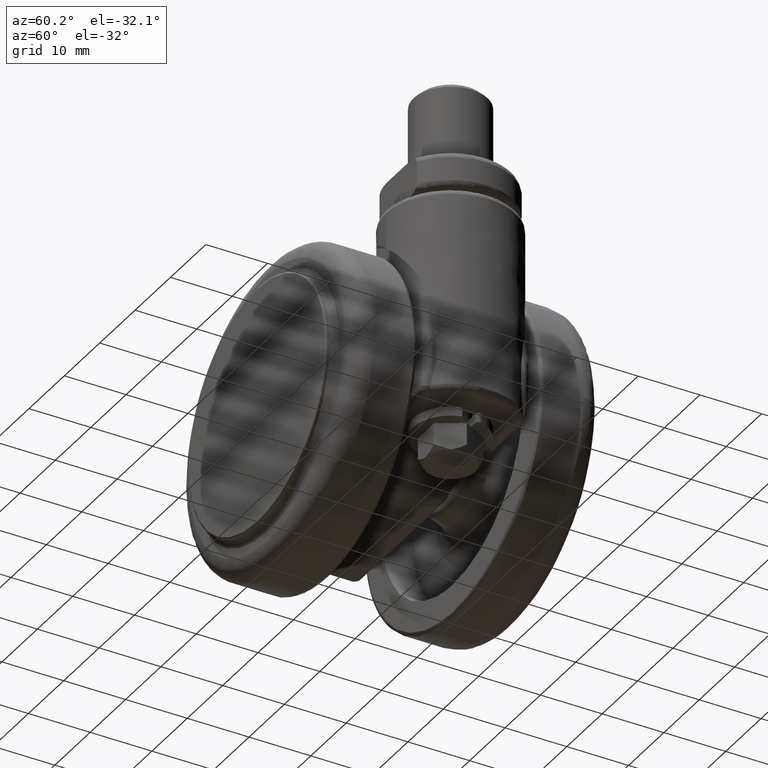
[diagram: clean part render]
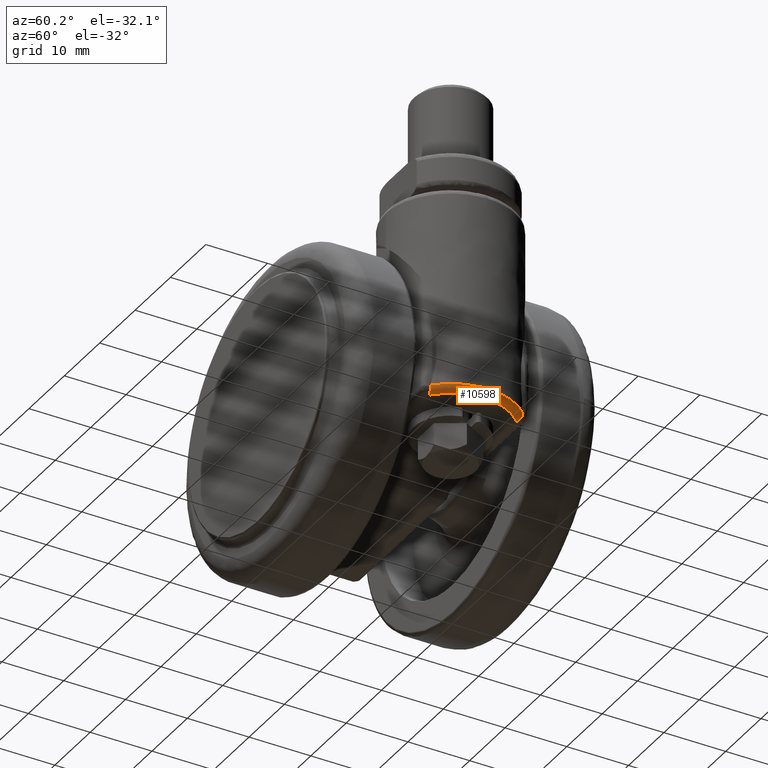
[diagram: same view with one face highlighted and labeled with its STEP entity id]
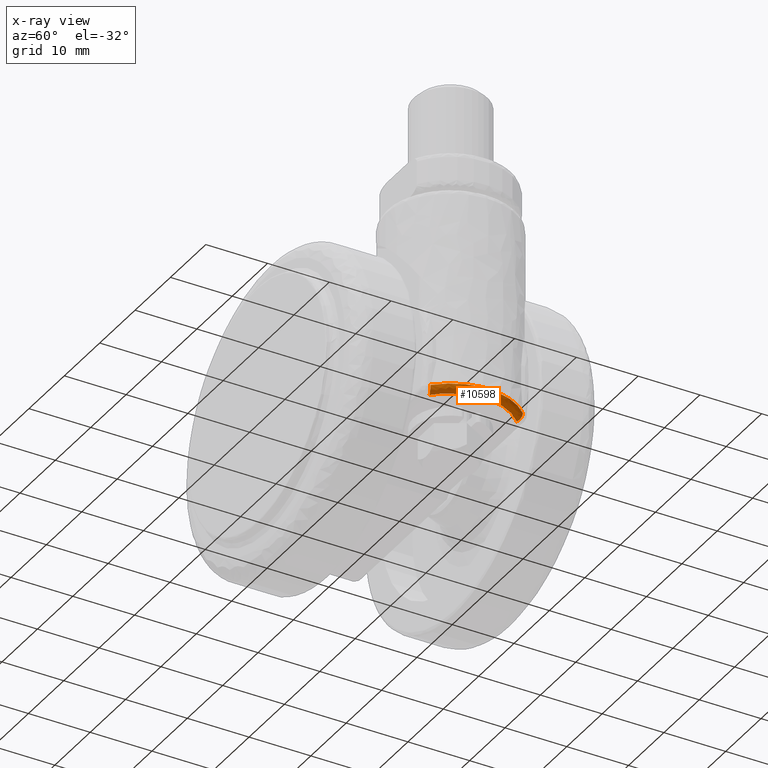
[diagram: x-ray of the same camera — body ghosted, the highlighted face saturated]
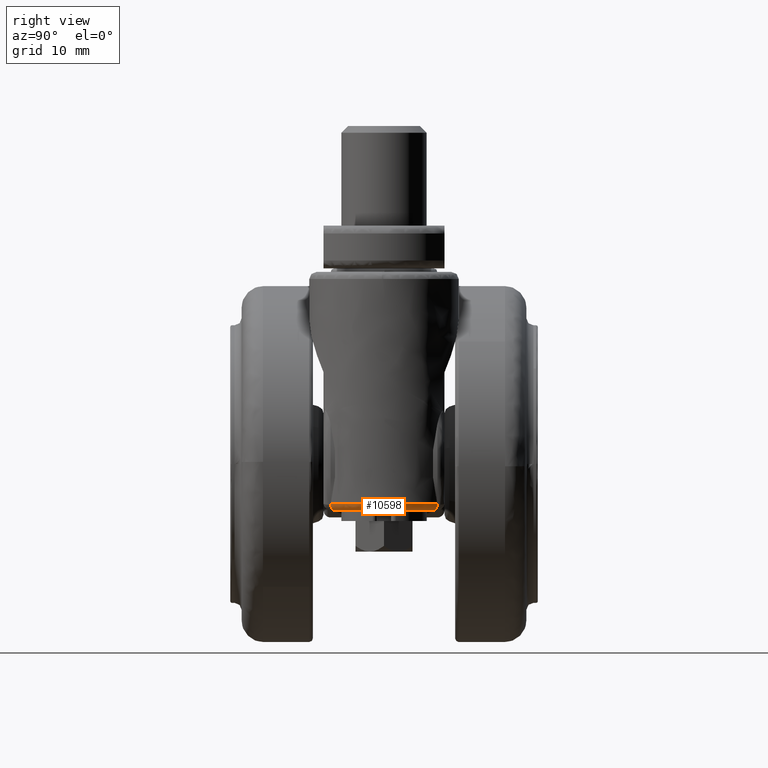
[diagram: same view with one face highlighted and labeled with its STEP entity id]
A machine part, auxiliary view. The second image highlights one B-rep face of the part: STEP entity #10598.
The next image is the same camera in x-ray: the body ghosted, the highlighted face saturated — about 0% of this face is hidden behind the body in this view.
A second angle (right view) of the same face is appended — the face is thin or edge-on in the first view.
In plain terms, the highlighted face is a freeform B-spline surface patch.
Its self-contained STEP definition (entity closure, byte-faithful):
#9650=CARTESIAN_POINT('',(24.387496796514451,-7.461560901144560,-5.499999999999890));
#9651=VERTEX_POINT('',#9650);
#9696=CARTESIAN_POINT('',(24.334679971299298,-7.476249670503050,-5.729166666666670));
#9697=VERTEX_POINT('',#9696);
#9703=CARTESIAN_POINT('',(24.334679971299298,-7.476249670503050,-5.729166666666670));
#9704=CARTESIAN_POINT('',(24.352823992916370,-7.483866961831759,-5.652099793745570));
#9705=CARTESIAN_POINT('',(24.370415591582699,-7.478472556545597,-5.575739605555095));
#9706=CARTESIAN_POINT('',(24.387496796514451,-7.461560901144560,-5.499999999999880));
#9707=QUASI_UNIFORM_CURVE('',3,(#9703,#9704,#9705,#9706),.UNSPECIFIED.,.F.,.U.);
#9708=EDGE_CURVE('',#9697,#9651,#9707,.T.);
#10110=CARTESIAN_POINT('',(24.387496796514402,7.461560901144580,-5.500000000000000));
#10111=VERTEX_POINT('',#10110);
#10112=CARTESIAN_POINT('',(24.387496796514451,-7.461560901144560,-5.499999999999890));
#10113=CARTESIAN_POINT('',(24.879024610537670,-6.975045423905334,-5.499999999999909));
#10114=CARTESIAN_POINT('',(25.599128465107700,-6.105106027857914,-5.499999999999937));
#10115=CARTESIAN_POINT('',(26.498368389066499,-4.574067672394741,-5.499999999999968));
#10116=CARTESIAN_POINT('',(27.121119077843019,-2.999773624282649,-5.499999999999975));
#10117=CARTESIAN_POINT('',(27.470287406262269,-1.255556601650678,-5.500000000000046));
#10118=CARTESIAN_POINT('',(27.535293737814332,0.498628157680757,-5.499999999999933));
#10119=CARTESIAN_POINT('',(27.297081425748139,2.371348815757560,-5.500000000000059));
#10120=CARTESIAN_POINT('',(26.700338391069121,4.165347984281385,-5.499999999999974));
#10121=CARTESIAN_POINT('',(25.733727944731960,5.933901634046193,-5.499999999999926));
#10122=CARTESIAN_POINT('',(24.925127144552690,6.929451291551857,-5.500000000000050));
#10123=CARTESIAN_POINT('',(24.387496796514402,7.461560901144580,-5.500000000000000));
#10124=B_SPLINE_CURVE_WITH_KNOTS('',3,(#10112,#10113,#10114,#10115,#10116,#10117,#10118,#10119,#10120,#10121,#10122,#10123),.UNSPECIFIED.,.F.,.U.,(4,1,1,1,1,1,1,1,1,4),(0.000000050855085,2.074751129044424,3.371491717123995,5.316598457141730,7.132016395034542,8.688057306325216,10.568328063861760,12.772782440772451,14.328868006290829,16.598130696257659),.UNSPECIFIED.);
#10125=EDGE_CURVE('',#9651,#10111,#10124,.T.);
#10477=CARTESIAN_POINT('',(23.361292772447349,-7.055774533189781,-6.500000000000000));
#10478=VERTEX_POINT('',#10477);
#10484=CARTESIAN_POINT('',(23.361292772447349,-7.055774533189770,-6.500000000000000));
#10485=CARTESIAN_POINT('',(23.374654382149611,-7.061717086989801,-6.500000000000001));
#10486=CARTESIAN_POINT('',(23.388258948700400,-7.067762576183789,-6.499727201823495));
#10487=CARTESIAN_POINT('',(23.415192626979842,-7.079713390714911,-6.498637300729809));
#10488=CARTESIAN_POINT('',(23.428618600517918,-7.085663094422372,-6.497821416646351));
#10489=CARTESIAN_POINT('',(23.468775122597211,-7.103436204705991,-6.494569721527190));
#10490=CARTESIAN_POINT('',(23.495384477043750,-7.115183704228200,-6.491331143550776));
#10491=CARTESIAN_POINT('',(23.574729558284218,-7.150127840515994,-6.478425686556037));
#10492=CARTESIAN_POINT('',(23.626985805084320,-7.173027657944319,-6.465590796116691));
#10493=CARTESIAN_POINT('',(23.704356954040069,-7.206777148937647,-6.439705571225593));
#10494=CARTESIAN_POINT('',(23.730082017816301,-7.217971799284676,-6.429917234422415));
#10495=CARTESIAN_POINT('',(23.780476760508350,-7.239852593907229,-6.408315118518296));
#10496=CARTESIAN_POINT('',(23.805177370465088,-7.250552484061773,-6.396502476480388));
#10497=CARTESIAN_POINT('',(23.877790177122890,-7.281940703758294,-6.358039240206836));
#10498=CARTESIAN_POINT('',(23.924224400267889,-7.301922401506372,-6.328385451216060));
#10499=CARTESIAN_POINT('',(23.990732549801251,-7.330436478093403,-6.277550117376017));
#10500=CARTESIAN_POINT('',(24.012450705295880,-7.339728987841403,-6.259463145437239));
#10501=CARTESIAN_POINT('',(24.054105023643942,-7.357520168852753,-6.221666202188324));
#10502=CARTESIAN_POINT('',(24.074107904920940,-7.366047576310995,-6.201916488813471));
#10503=CARTESIAN_POINT('',(24.131635735834990,-7.390533322055275,-6.140109678231301));
#10504=CARTESIAN_POINT('',(24.166700054042071,-7.405403943275900,-6.095515658123714));
#10505=CARTESIAN_POINT('',(24.214000631858479,-7.425415773065857,-6.023181855168512));
#10506=CARTESIAN_POINT('',(24.228830874404199,-7.431681074258755,-5.998205970273987));
#10507=CARTESIAN_POINT('',(24.256098494601432,-7.443188412412936,-5.947386037739047));
#10508=CARTESIAN_POINT('',(24.268613761532361,-7.448463410726061,-5.921427474251424));
#10509=CARTESIAN_POINT('',(24.302797577729731,-7.462858851612588,-5.841904481957641));
#10510=CARTESIAN_POINT('',(24.321133123667959,-7.470562382030224,-5.786707007332018));
#10511=CARTESIAN_POINT('',(24.334679971299298,-7.476249670503050,-5.729166666666670));
#10512=B_SPLINE_CURVE_WITH_KNOTS('',3,(#10484,#10485,#10486,#10487,#10488,#10489,#10490,#10491,#10492,#10493,#10494,#10495,#10496,#10497,#10498,#10499,#10500,#10501,#10502,#10503,#10504,#10505,#10506,#10507,#10508,#10509,#10510,#10511),.UNSPECIFIED.,.F.,.U.,(4,2,2,2,2,2,2,2,2,2,2,2,2,4),(0.0,0.031250000000001,0.062500000000001,0.125000000000002,0.250000000000003,0.312500000000004,0.375000000000004,0.500000000000004,0.562500000000003,0.625000000000003,0.750000000000001,0.812500000000000,0.875000000000000,1.0),.UNSPECIFIED.);
#10513=EDGE_CURVE('',#10478,#9697,#10512,.T.);
#10518=CARTESIAN_POINT('',(23.442230612918490,8.288338976575046,-5.430275732217766));
#10519=CARTESIAN_POINT('',(34.105705444179115,-0.000000121546670,-5.430275732217764));
#10520=CARTESIAN_POINT('',(23.442230495130900,-8.288339068127154,-5.430275732217767));
#10521=CARTESIAN_POINT('',(23.491431842763646,8.351639484663535,-6.577335706274872));
#10522=CARTESIAN_POINT('',(34.236346800533973,-0.000000122474958,-6.577335706274869));
#10523=CARTESIAN_POINT('',(23.491431724076467,-8.351639576914849,-6.577335706274870));
#10524=CARTESIAN_POINT('',(22.787476504985804,7.445956218347031,-6.497592349468413));
#10525=CARTESIAN_POINT('',(32.367172382943487,-0.000000109193312,-6.497592349468413));
#10526=CARTESIAN_POINT('',(22.787476399169513,-7.445956300594268,-6.497592349468414));
#10534=(BOUNDED_SURFACE()B_SPLINE_SURFACE(2,2,((#10518,#10521,#10524),(#10519,#10522,#10525),(#10520,#10523,#10526)),.UNSPECIFIED.,.F.,.F.,.U.)B_SPLINE_SURFACE_WITH_KNOTS((3,3),(3,3),(0.0,20.545084255600671),(0.0,1.822370444831695),.UNSPECIFIED.)GEOMETRIC_REPRESENTATION_ITEM()RATIONAL_B_SPLINE_SURFACE(((0.839386352178305,0.552357996219453,0.844061714140648),(0.515121340315658,0.338975479656351,0.517990553895618),(0.839386358014815,0.552358000060168,0.844061720009668)))REPRESENTATION_ITEM('')SURFACE());
#10535=ORIENTED_EDGE('',*,*,#10125,.F.);
#10536=ORIENTED_EDGE('',*,*,#9708,.F.);
#10537=ORIENTED_EDGE('',*,*,#10513,.F.);
#10538=CARTESIAN_POINT('',(23.361292772447349,7.055774533189781,-6.500000000000000));
#10539=VERTEX_POINT('',#10538);
#10540=CARTESIAN_POINT('',(23.361292772447349,7.055774533189781,-6.500000000000000));
#10541=CARTESIAN_POINT('',(23.699693179572900,6.750700419642795,-6.500000000000025));
#10542=CARTESIAN_POINT('',(24.390039204421619,6.031859031843397,-6.499999999999966));
#10543=CARTESIAN_POINT('',(25.209517054254849,4.854900167012912,-6.500000000000006));
#10544=CARTESIAN_POINT('',(25.838350429153849,3.567957368646029,-6.499999999999979));
#10545=CARTESIAN_POINT('',(26.312871373435630,2.106544172259368,-6.500000000000047));
#10546=CARTESIAN_POINT('',(26.528766124750209,0.581354671405252,-6.499999999999920));
#10547=CARTESIAN_POINT('',(26.485900043160900,-0.871125338134893,-6.500000000000120));
#10548=CARTESIAN_POINT('',(26.265458615120981,-2.264499315343688,-6.499999999999758));
#10549=CARTESIAN_POINT('',(25.788545355502581,-3.750067850045329,-6.500000000000187));
#10550=CARTESIAN_POINT('',(24.846480962267371,-5.486711847448524,-6.499999999999901));
#10551=CARTESIAN_POINT('',(23.945947273709780,-6.528962079183244,-6.500000000000023));
#10552=CARTESIAN_POINT('',(23.361292772447349,-7.055774533189781,-6.500000000000000));
#10553=B_SPLINE_CURVE_WITH_KNOTS('',3,(#10540,#10541,#10542,#10543,#10544,#10545,#10546,#10547,#10548,#10549,#10550,#10551,#10552),.UNSPECIFIED.,.F.,.U.,(4,1,1,1,1,1,1,1,1,1,4),(0.000000057641259,1.366849089940303,2.982214922248712,4.286945506173232,5.653809288946526,7.579840708770529,8.884508069401404,10.002853240760050,11.804624243751199,13.544266858703770,15.905176890856760),.UNSPECIFIED.);
#10554=EDGE_CURVE('',#10539,#10478,#10553,.T.);
#10555=ORIENTED_EDGE('',*,*,#10554,.F.);
#10556=CARTESIAN_POINT('',(24.334679971299298,7.476249670503050,-5.729166666666670));
#10557=VERTEX_POINT('',#10556);
#10558=CARTESIAN_POINT('',(23.361292772447349,7.055774533189770,-6.500000000000000));
#10559=CARTESIAN_POINT('',(23.374654382149611,7.061717086989801,-6.500000000000001));
#10560=CARTESIAN_POINT('',(23.388258948700400,7.067762576183789,-6.499727201823494));
#10561=CARTESIAN_POINT('',(23.415192626979842,7.079713390714911,-6.498637300729809));
#10562=CARTESIAN_POINT('',(23.428618600517918,7.085663094422372,-6.497821416646351));
#10563=CARTESIAN_POINT('',(23.468775122597211,7.103436204705991,-6.494569721527190));
#10564=CARTESIAN_POINT('',(23.495384477043750,7.115183704228200,-6.491331143550776));
#10565=CARTESIAN_POINT('',(23.574729558284218,7.150127840515994,-6.478425686556037));
#10566=CARTESIAN_POINT('',(23.626985805084320,7.173027657944319,-6.465590796116691));
#10567=CARTESIAN_POINT('',(23.704356954040069,7.206777148937647,-6.439705571225593));
#10568=CARTESIAN_POINT('',(23.730082017816301,7.217971799284676,-6.429917234422415));
#10569=CARTESIAN_POINT('',(23.780476760508350,7.239852593907229,-6.408315118518296));
#10570=CARTESIAN_POINT('',(23.805177370465088,7.250552484061773,-6.396502476480388));
#10571=CARTESIAN_POINT('',(23.877790177122890,7.281940703758294,-6.358039240206836));
#10572=CARTESIAN_POINT('',(23.924224400267889,7.301922401506372,-6.328385451216060));
#10573=CARTESIAN_POINT('',(23.990732549801251,7.330436478093403,-6.277550117376017));
#10574=CARTESIAN_POINT('',(24.012450705295880,7.339728987841403,-6.259463145437239));
#10575=CARTESIAN_POINT('',(24.054105023643942,7.357520168852753,-6.221666202188324));
#10576=CARTESIAN_POINT('',(24.074107904920940,7.366047576310995,-6.201916488813471));
#10577=CARTESIAN_POINT('',(24.131635735834990,7.390533322055275,-6.140109678231301));
#10578=CARTESIAN_POINT('',(24.166700054042071,7.405403943275900,-6.095515658123714));
#10579=CARTESIAN_POINT('',(24.214000631858479,7.425415773065857,-6.023181855168512));
#10580=CARTESIAN_POINT('',(24.228830874404199,7.431681074258755,-5.998205970273987));
#10581=CARTESIAN_POINT('',(24.256098494601432,7.443188412412936,-5.947386037739047));
#10582=CARTESIAN_POINT('',(24.268613761532361,7.448463410726061,-5.921427474251424));
#10583=CARTESIAN_POINT('',(24.302797577729731,7.462858851612588,-5.841904481957641));
#10584=CARTESIAN_POINT('',(24.321133123667959,7.470562382030224,-5.786707007332018));
#10585=CARTESIAN_POINT('',(24.334679971299298,7.476249670503050,-5.729166666666670));
#10586=B_SPLINE_CURVE_WITH_KNOTS('',3,(#10558,#10559,#10560,#10561,#10562,#10563,#10564,#10565,#10566,#10567,#10568,#10569,#10570,#10571,#10572,#10573,#10574,#10575,#10576,#10577,#10578,#10579,#10580,#10581,#10582,#10583,#10584,#10585),.UNSPECIFIED.,.F.,.U.,(4,2,2,2,2,2,2,2,2,2,2,2,2,4),(0.0,0.031250000000001,0.062500000000001,0.125000000000002,0.250000000000003,0.312500000000004,0.375000000000004,0.500000000000004,0.562500000000003,0.625000000000003,0.750000000000001,0.812500000000000,0.875000000000000,1.0),.UNSPECIFIED.);
#10587=EDGE_CURVE('',#10539,#10557,#10586,.T.);
#10588=ORIENTED_EDGE('',*,*,#10587,.T.);
#10589=CARTESIAN_POINT('',(24.387496796514402,7.461560901144580,-5.500000000000000));
#10590=CARTESIAN_POINT('',(24.370415591582660,7.478472556545596,-5.575739605555178));
#10591=CARTESIAN_POINT('',(24.352823992916360,7.483866961831755,-5.652099793745609));
#10592=CARTESIAN_POINT('',(24.334679971299298,7.476249670503050,-5.729166666666670));
#10593=QUASI_UNIFORM_CURVE('',3,(#10589,#10590,#10591,#10592),.UNSPECIFIED.,.F.,.U.);
#10594=EDGE_CURVE('',#10111,#10557,#10593,.T.);
#10595=ORIENTED_EDGE('',*,*,#10594,.F.);
#10596=EDGE_LOOP('',(#10535,#10536,#10537,#10555,#10588,#10595));
#10597=FACE_OUTER_BOUND('',#10596,.T.);
#10598=ADVANCED_FACE('',(#10597),#10534,.T.);